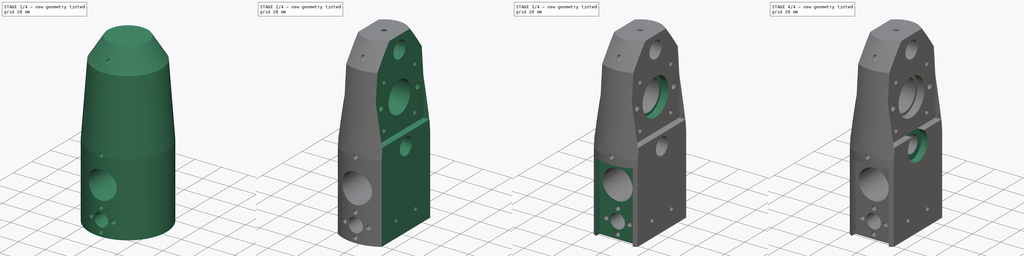
[diagram: build sequence overview — one tinted view per stage of 4, left to right]
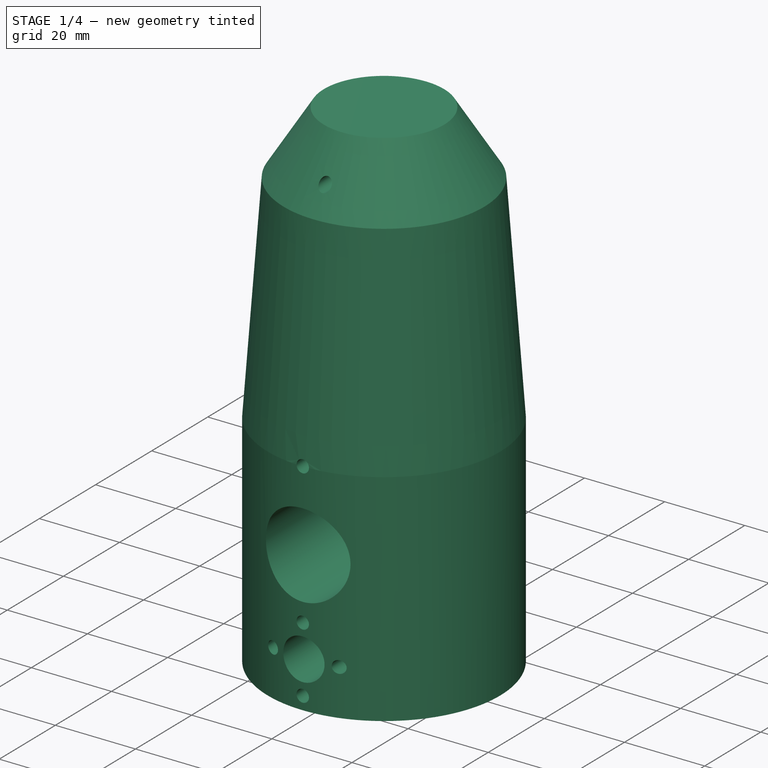
[diagram: stage 1 of 4 — iso view after this stage's code; geometry added in this stage tinted green]
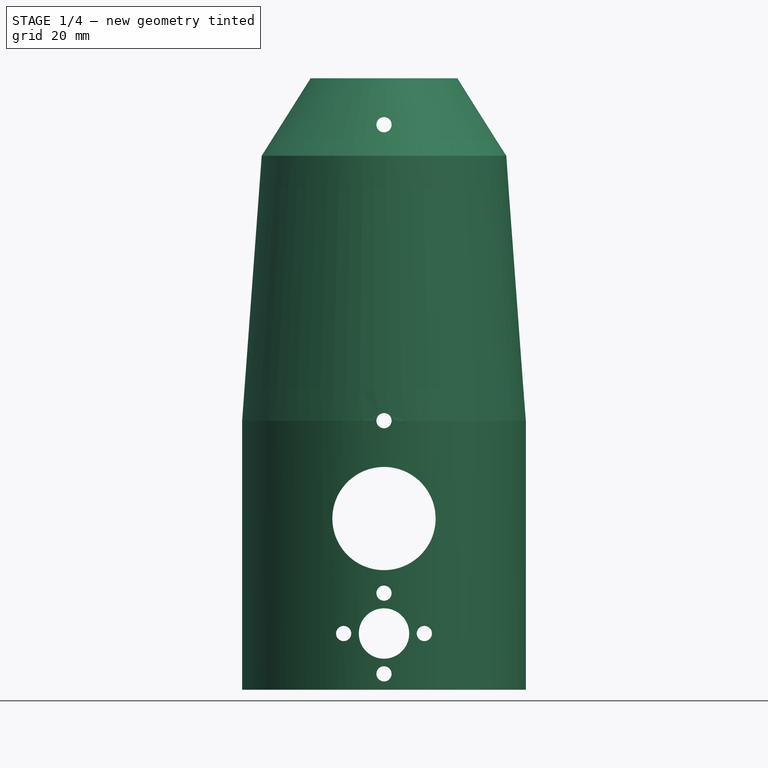
[diagram: stage 1 of 4 — front view after this stage's code; geometry added in this stage tinted green]
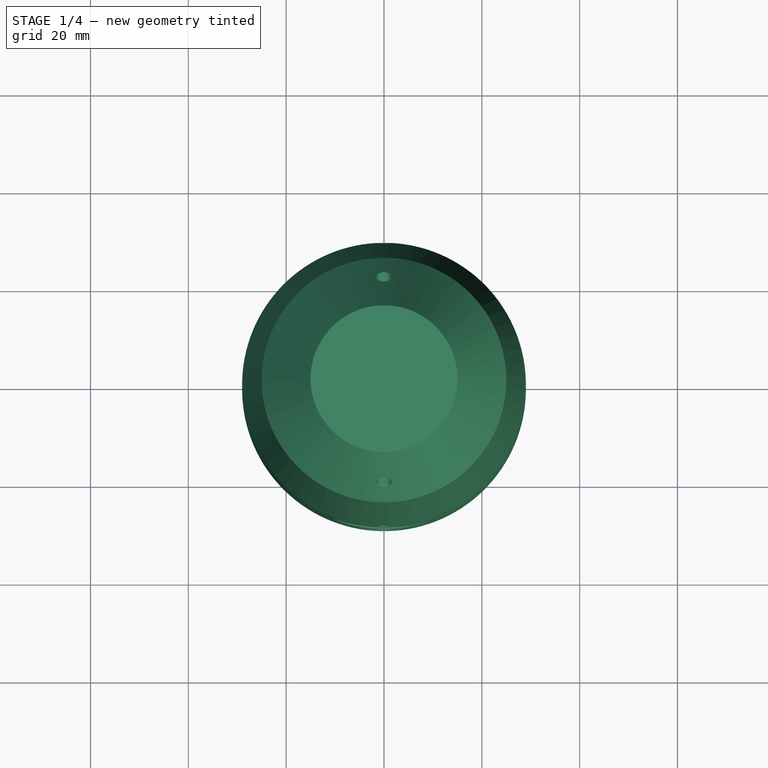
[diagram: stage 1 of 4 — top view after this stage's code; geometry added in this stage tinted green]
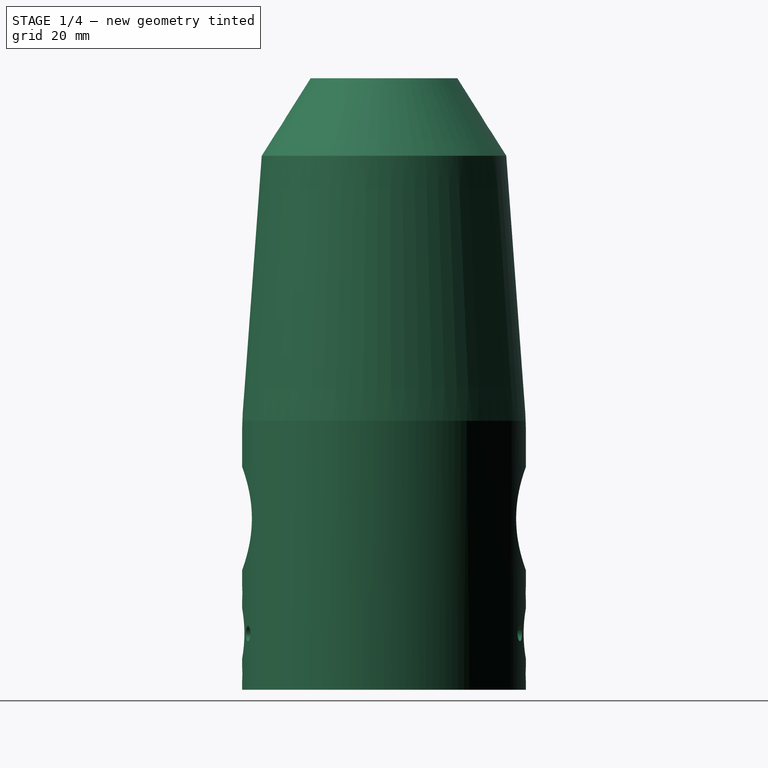
[diagram: stage 1 of 4 — right view after this stage's code; geometry added in this stage tinted green]
FCSTD DOCUMENT  (FreeCAD 0.19R)
Label: rod_holder_x
License: All rights reserved
LicenseURL: http://en.wikipedia.org/wiki/All_rights_reserved
objects: Sketcher::SketchObject×10, PartDesign::Pocket×9, PartDesign::Revolution×1, PartDesign::Body×1
note: 31 computed .brp shape members not serialized (recipe doc carries the construction recipe); baked Part::Feature solids carry a one-line shape summary decoded from their .brp

FEATURE [Sketcher::SketchObject] Sketch
  FullyConstrained = false
  MapMode = 5
  Placement = pos=(0,0,0) rot=(1,0,0;1.5708rad)
  Support = -> [XZ_Plane]
  sketch-geometry (6):
    g0: LineSegment StartX=0 StartY=-35 StartZ=0 EndX=-29 EndY=-35 EndZ=0
    g1: LineSegment StartX=-29 StartY=-35 StartZ=0 EndX=-29 EndY=20 EndZ=0
    g2: LineSegment StartX=-15 StartY=90 StartZ=0 EndX=0 EndY=90 EndZ=0
    g3: LineSegment StartX=0 StartY=90 StartZ=0 EndX=0 EndY=-35 EndZ=0
    g4: LineSegment StartX=-15 StartY=90 StartZ=0 EndX=-25 EndY=74.1526 EndZ=0
    g5: LineSegment StartX=-25 StartY=74.1526 StartZ=0 EndX=-29 EndY=20 EndZ=0
  constraints (17):
    c: PointOnObject(g0,g-2)
    c: Horizontal(g0)
    c: Vertical(g1)
    c: PointOnObject(g2,g-2)
    c: Horizontal(g2)
    c: Coincident(g3,g2)
    c: Coincident(g3,g0)
    c: DistanceY(g0,g-1) = 35
    c: Coincident(g1,g0)
    c: DistanceY(g-1,g2) = 90
    c: DistanceY(g0,g1) = 55
    c: DistanceX(g0,g0) = 29
    c: DistanceX(g2,g2) = 15
    c: Coincident(g4,g2)
    c: Coincident(g5,g4)
    c: Coincident(g5,g1)
    c: DistanceX(g4,g2) = 25
FEATURE [PartDesign::Revolution] Revolution
  Angle = 360
  Axis = (0,2e-16,1)
  Base = (0,0,0)
  Placement = pos=(0,0,0) rot=(1,0,0;1.5708rad)
  Profile = -> Sketch
  ReferenceAxis = -> Sketch [V_Axis]
FEATURE [Sketcher::SketchObject] Sketch001
  FullyConstrained = false
  MapMode = 5
  Placement = pos=(0,0,0) rot=(1,0,0;1.5708rad)
  Support = -> [XZ_Plane]
  sketch-geometry (13):
    g0: Circle CenterX=0 CenterY=0 CenterZ=0 NormalX=0 NormalY=0 NormalZ=1 AngleXU=0 Radius=10.55
    g1: Circle CenterX=0 CenterY=-23.5 CenterZ=0 NormalX=0 NormalY=0 NormalZ=1 AngleXU=0 Radius=5.15
    g2: LineSegment StartX=0 StartY=-31.75 StartZ=0 EndX=8.25 EndY=-23.5 EndZ=0
    g3: LineSegment StartX=8.25 StartY=-23.5 StartZ=0 EndX=-8.9e-15 EndY=-15.25 EndZ=0
    g4: LineSegment StartX=-8.9e-15 StartY=-15.25 StartZ=0 EndX=-8.25 EndY=-23.5 EndZ=0
    g5: LineSegment StartX=-8.25 StartY=-23.5 StartZ=0 EndX=0 EndY=-31.75 EndZ=0
    g6: Circle CenterX=0 CenterY=-23.5 CenterZ=0 NormalX=0 NormalY=0 NormalZ=1 AngleXU=0 Radius=8.25
    g7: Circle CenterX=-8.9e-15 CenterY=-15.25 CenterZ=0 NormalX=0 NormalY=0 NormalZ=1 AngleXU=0 Radius=1.55
    g8: Circle CenterX=8.25 CenterY=-23.5 CenterZ=0 NormalX=0 NormalY=0 NormalZ=1 AngleXU=0 Radius=1.55
    g9: Circle CenterX=0 CenterY=-31.75 CenterZ=0 NormalX=0 NormalY=0 NormalZ=1 AngleXU=0 Radius=1.55
    g10: Circle CenterX=-8.25 CenterY=-23.5 CenterZ=0 NormalX=0 NormalY=0 NormalZ=1 AngleXU=0 Radius=1.55
    g11: Circle CenterX=0 CenterY=20 CenterZ=0 NormalX=0 NormalY=0 NormalZ=1 AngleXU=0 Radius=1.55
    g12: Circle CenterX=0 CenterY=80.5 CenterZ=0 NormalX=0 NormalY=0 NormalZ=1 AngleXU=0 Radius=1.55
  constraints (31):
    c: PointOnObject(g0,g-1)
    c: Diameter(g0) = 21.1
    c: PointOnObject(g0,g-2)
    c: PointOnObject(g1,g-2)
    c: Diameter(g1) = 10.3
    c: DistanceY(g1,g0) = 23.5
    c: Coincident(g2,g3)
    c: Coincident(g3,g4)
    c: Coincident(g4,g5)
    c: Coincident(g5,g2)
    c: Equal(g2,g3)
    c: Equal(g2,g4)
    c: Equal(g2,g5)
    c: PointOnObject(g2,g6)
    c: PointOnObject(g3,g6)
    c: PointOnObject(g4,g6)
    c: PointOnObject(g5,g6)
    c: Coincident(g6,g1)
    c: PointOnObject(g5,g-2)
    c: DistanceY(g2,g1) = 8.25
    c: Coincident(g7,g3)
    c: Coincident(g8,g2)
    c: Coincident(g9,g2)
    c: Coincident(g10,g4)
    c: Equal(g10,g9)
    c: PointOnObject(g11,g-2)
    c: DistanceY(g0,g11) = 20
    c: PointOnObject(g12,g-2)
    c: Diameter(g12) = 3.1
    c: Diameter(g11) = 3.1
    c: DistanceY(g11,g12) = 60.5
FEATURE [PartDesign::Pocket] Pocket
  BaseFeature = -> Revolution
  Length = 100
  Length2 = 100
  Placement = pos=(0,0,0) rot=(1,0,0;1.5708rad)
  Profile = -> Sketch001
  Type = 4
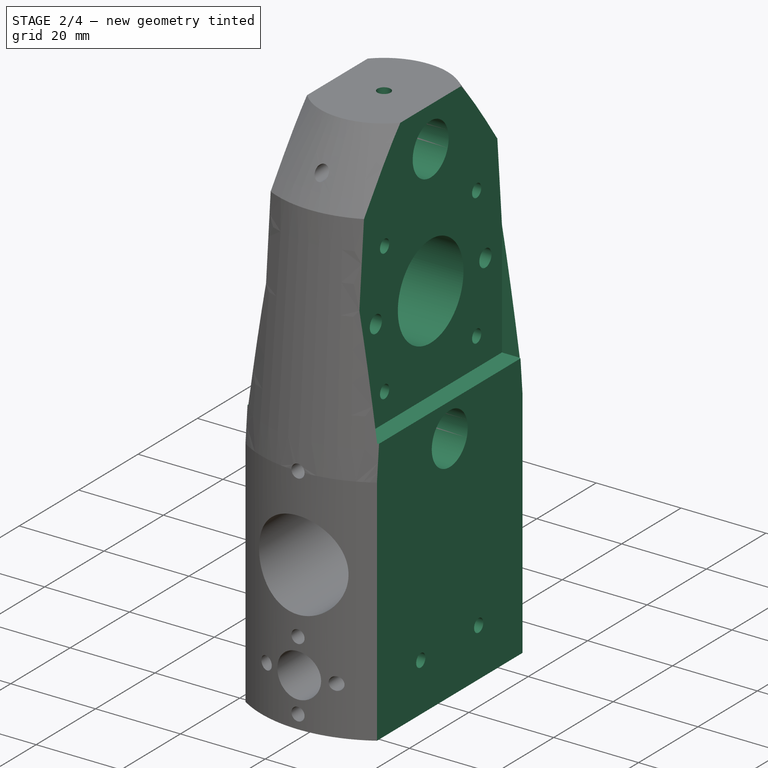
[diagram: stage 2 of 4 — iso view after this stage's code; geometry added in this stage tinted green]
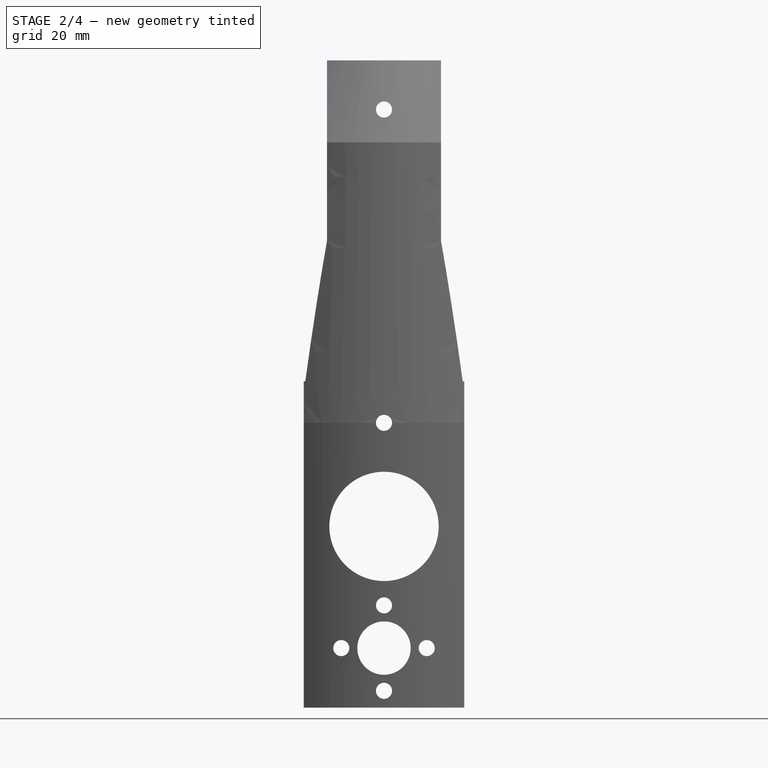
[diagram: stage 2 of 4 — front view after this stage's code; geometry added in this stage tinted green]
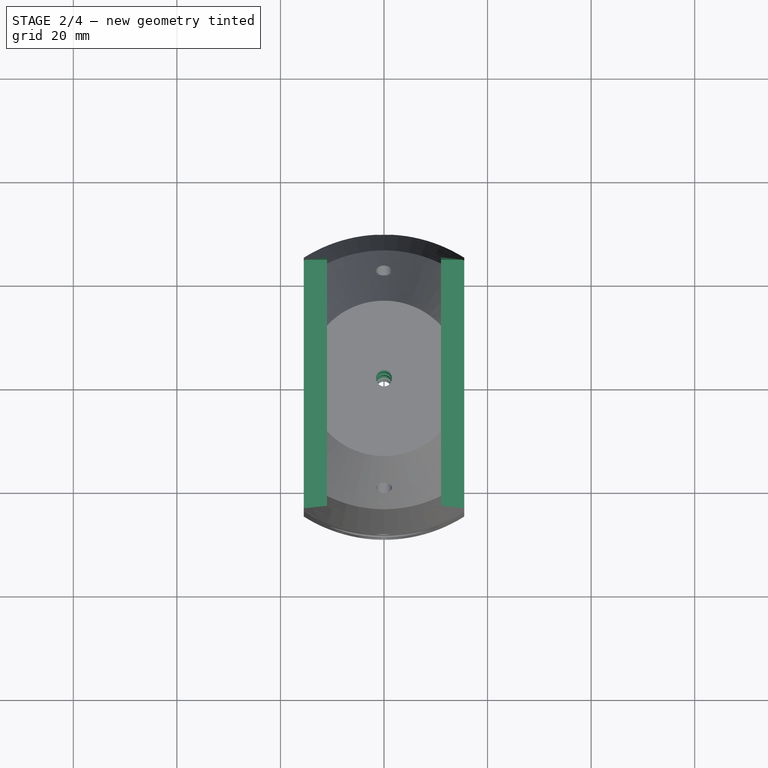
[diagram: stage 2 of 4 — top view after this stage's code; geometry added in this stage tinted green]
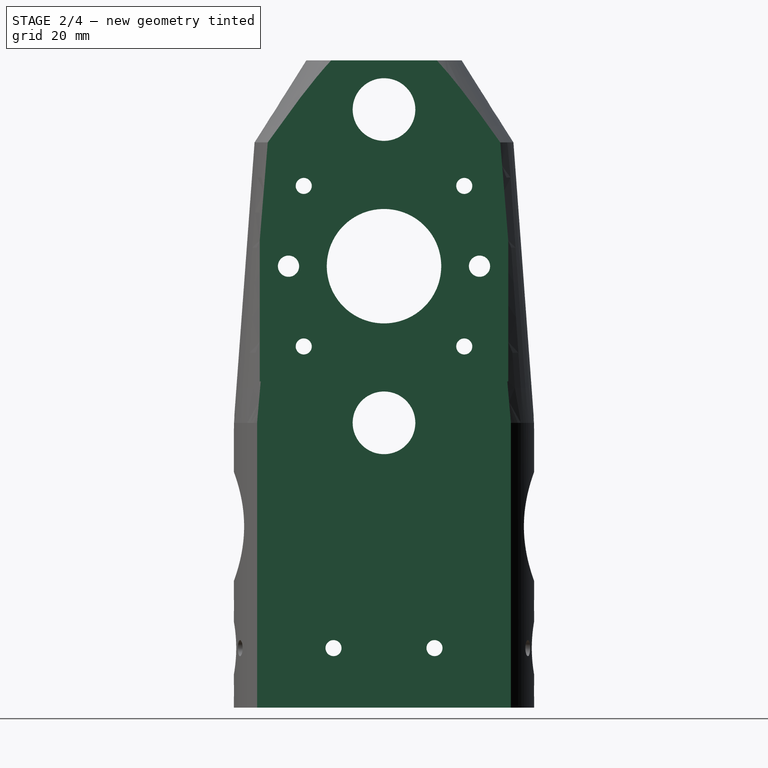
[diagram: stage 2 of 4 — right view after this stage's code; geometry added in this stage tinted green]
FEATURE [Sketcher::SketchObject] Sketch002
  FullyConstrained = false
  MapMode = 5
  Placement = pos=(0,-3.89e-14,-35) rot=(1,0,0;3.14159rad)
  Support = -> [Pocket]
  sketch-geometry (9):
    g0: Circle CenterX=0 CenterY=0 CenterZ=0 NormalX=0 NormalY=0 NormalZ=1 AngleXU=0 Radius=1.55
    g1: LineSegment StartX=-34.2658 StartY=34.1571 StartZ=0 EndX=-15.5 EndY=34.1571 EndZ=0
    g2: LineSegment StartX=-15.5 StartY=34.1571 StartZ=0 EndX=-15.5 EndY=-34.1571 EndZ=0
    g3: LineSegment StartX=-15.5 StartY=-34.1571 StartZ=0 EndX=-34.2658 EndY=-34.1571 EndZ=0
    g4: LineSegment StartX=-34.2658 StartY=-34.1571 StartZ=0 EndX=-34.2658 EndY=34.1571 EndZ=0
    g5: LineSegment StartX=15.5 StartY=34.1571 StartZ=0 EndX=34.2658 EndY=34.1571 EndZ=0
    g6: LineSegment StartX=34.2658 StartY=34.1571 StartZ=0 EndX=34.2658 EndY=-34.1571 EndZ=0
    g7: LineSegment StartX=34.2658 StartY=-34.1571 StartZ=0 EndX=15.5 EndY=-34.1571 EndZ=0
    g8: LineSegment StartX=15.5 StartY=-34.1571 StartZ=0 EndX=15.5 EndY=34.1571 EndZ=0
  constraints (20):
    c: Coincident(g0,g-1)
    c: Diameter(g0) = 3.1
    c: Coincident(g1,g2)
    c: Coincident(g2,g3)
    c: Coincident(g3,g4)
    c: Coincident(g4,g1)
    c: Horizontal(g1)
    c: Horizontal(g3)
    c: Vertical(g2)
    c: Coincident(g5,g6)
    c: Coincident(g6,g7)
    c: Coincident(g7,g8)
    c: Coincident(g8,g5)
    c: Horizontal(g7)
    c: Vertical(g8)
    c: Symmetric(g1,g5,g-2)
    c: Symmetric(g5,g6,g-1)
    c: Symmetric(g1,g3,g-1)
    c: DistanceX(g2,g7) = 31
    c: Symmetric(g3,g6,g-2)
FEATURE [PartDesign::Pocket] Pocket001
  BaseFeature = -> Pocket
  Length = 5
  Length2 = 100
  Placement = pos=(0,0,0) rot=(1,0,0;1.5708rad)
  Profile = -> Sketch002
  Type = 1
FEATURE [Sketcher::SketchObject] Sketch003
  FullyConstrained = false
  MapMode = 5
  Placement = pos=(-15.5,0,0) rot=(0.707107,0,-0.707107;3.14159rad)
  Support = -> [Pocket001]
  sketch-geometry (17):
    g0: Circle CenterX=-20 CenterY=-8.2e-15 CenterZ=0 NormalX=0 NormalY=0 NormalZ=1 AngleXU=0 Radius=6.05
    g1: Circle CenterX=-80.5 CenterY=-8.2e-15 CenterZ=0 NormalX=0 NormalY=0 NormalZ=1 AngleXU=0 Radius=6.05
    g2: Circle CenterX=-50.25 CenterY=-2.46e-14 CenterZ=0 NormalX=0 NormalY=0 NormalZ=1 AngleXU=0 Radius=11.05
    g3: LineSegment StartX=-34.75 StartY=-15.5 StartZ=0 EndX=-34.75 EndY=15.5 EndZ=0
    g4: LineSegment StartX=-34.75 StartY=15.5 StartZ=0 EndX=-65.75 EndY=15.5 EndZ=0
    g5: LineSegment StartX=-65.75 StartY=15.5 StartZ=0 EndX=-65.75 EndY=-15.5 EndZ=0
    g6: LineSegment StartX=-65.75 StartY=-15.5 StartZ=0 EndX=-34.75 EndY=-15.5 EndZ=0
    g7: Circle CenterX=-50.25 CenterY=-2.46e-14 CenterZ=0 NormalX=0 NormalY=0 NormalZ=1 AngleXU=0 Radius=21.9203
    g8: Circle CenterX=-34.75 CenterY=15.5 CenterZ=0 NormalX=0 NormalY=0 NormalZ=1 AngleXU=0 Radius=3.07e-14
    g9: Circle CenterX=23.5 CenterY=9.75 CenterZ=0 NormalX=0 NormalY=0 NormalZ=1 AngleXU=0 Radius=1.55
    g10: Circle CenterX=23.5 CenterY=-9.75 CenterZ=0 NormalX=0 NormalY=0 NormalZ=1 AngleXU=0 Radius=1.55
    g11: Circle CenterX=-34.75 CenterY=15.5 CenterZ=0 NormalX=0 NormalY=0 NormalZ=1 AngleXU=0 Radius=1.55
    g12: Circle CenterX=-34.75 CenterY=-15.5 CenterZ=0 NormalX=0 NormalY=0 NormalZ=1 AngleXU=0 Radius=1.55
    g13: Circle CenterX=-65.75 CenterY=-15.5 CenterZ=0 NormalX=0 NormalY=0 NormalZ=1 AngleXU=0 Radius=1.55
    g14: Circle CenterX=-65.75 CenterY=15.5 CenterZ=0 NormalX=0 NormalY=0 NormalZ=1 AngleXU=0 Radius=1.55
    g15: Circle CenterX=-50.25 CenterY=18.441 CenterZ=0 NormalX=0 NormalY=0 NormalZ=1 AngleXU=0 Radius=2.05
    g16: Circle CenterX=-50.25 CenterY=-18.441 CenterZ=0 NormalX=0 NormalY=0 NormalZ=1 AngleXU=0 Radius=2.05
  constraints (39):
    c: PointOnObject(g0,g-1)
    c: PointOnObject(g1,g-1)
    c: Diameter(g0) = 12.1
    c: Equal(g0,g1)
    c: DistanceX(g1,g0) = 60.5
    c: Diameter(g2) = 22.1
    c: Symmetric(g1,g0,g2)
    c: Coincident(g3,g4)
    c: Coincident(g4,g5)
    c: Coincident(g5,g6)
    c: Coincident(g6,g3)
    c: Equal(g3,g4)
    c: Equal(g3,g5)
    c: Equal(g3,g6)
    c: PointOnObject(g3,g7)
    c: PointOnObject(g4,g7)
    c: PointOnObject(g5,g7)
    c: Coincident(g7,g2)
    c: Symmetric(g3,g3,g-1)
    c: Distance(g6) = 31
    c: Coincident(g8,g3)
    c: Tangent(g8,g7)
    c: Symmetric(g9,g10,g-1)
    c: Diameter(g9) = 3.1
    c: Equal(g9,g10)
    c: DistanceY(g10,g9) = 19.5
    c: DistanceX(g-1,g10) = 23.5
    c: Coincident(g11,g8)
    c: Coincident(g12,g3)
    c: Coincident(g13,g5)
    c: Coincident(g14,g4)
    c: Diameter(g14) = 3.1
    c: Equal(g14,g11)
    c: Equal(g14,g12)
    c: Diameter(g15) = 4.1
    c: Equal(g15,g16)
    c: Symmetric(g15,g16,g-1)
    c: DistanceX(g15,g2) = 0
    c: DistanceX(g0,g-1) = 20
FEATURE [PartDesign::Pocket] Pocket002
  BaseFeature = -> Pocket001
  Length = 5
  Length2 = 100
  Placement = pos=(0,0,0) rot=(1,0,0;1.5708rad)
  Profile = -> Sketch003
  Type = 1
FEATURE [Sketcher::SketchObject] Sketch004
  FullyConstrained = true
  MapMode = 5
  Placement = pos=(0,1.799e-13,90) rot=(0,0,1;3.14159rad)
  Support = -> [Pocket002]
  sketch-geometry (8):
    g0: LineSegment StartX=-31 StartY=24 StartZ=0 EndX=-11 EndY=24 EndZ=0
    g1: LineSegment StartX=-11 StartY=24 StartZ=0 EndX=-11 EndY=-24 EndZ=0
    g2: LineSegment StartX=-11 StartY=-24 StartZ=0 EndX=-31 EndY=-24 EndZ=0
    g3: LineSegment StartX=-31 StartY=-24 StartZ=0 EndX=-31 EndY=24 EndZ=0
    g4: LineSegment StartX=11 StartY=24 StartZ=0 EndX=31 EndY=24 EndZ=0
    g5: LineSegment StartX=31 StartY=24 StartZ=0 EndX=31 EndY=-24 EndZ=0
    g6: LineSegment StartX=31 StartY=-24 StartZ=0 EndX=11 EndY=-24 EndZ=0
    g7: LineSegment StartX=11 StartY=-24 StartZ=0 EndX=11 EndY=24 EndZ=0
  constraints (21):
    c: Coincident(g0,g1)
    c: Coincident(g1,g2)
    c: Coincident(g2,g3)
    c: Coincident(g3,g0)
    c: Horizontal(g0)
    c: Horizontal(g2)
    c: Vertical(g1)
    c: Coincident(g4,g5)
    c: Coincident(g5,g6)
    c: Coincident(g6,g7)
    c: Coincident(g7,g4)
    c: Horizontal(g4)
    c: Horizontal(g6)
    c: Vertical(g7)
    c: Symmetric(g4,g5,g-1)
    c: Symmetric(g4,g0,g-2)
    c: Distance(g4) = 20
    c: Distance(g0) = 20
    c: Distance(g3) = 48
    c: Symmetric(g0,g2,g-1)
    c: Distance(g6,g1) = 22
FEATURE [PartDesign::Pocket] Pocket003
  BaseFeature = -> Pocket002
  Length = 62
  Length2 = 100
  Placement = pos=(0,0,0) rot=(1,0,0;1.5708rad)
  Profile = -> Sketch004
  Type = 0
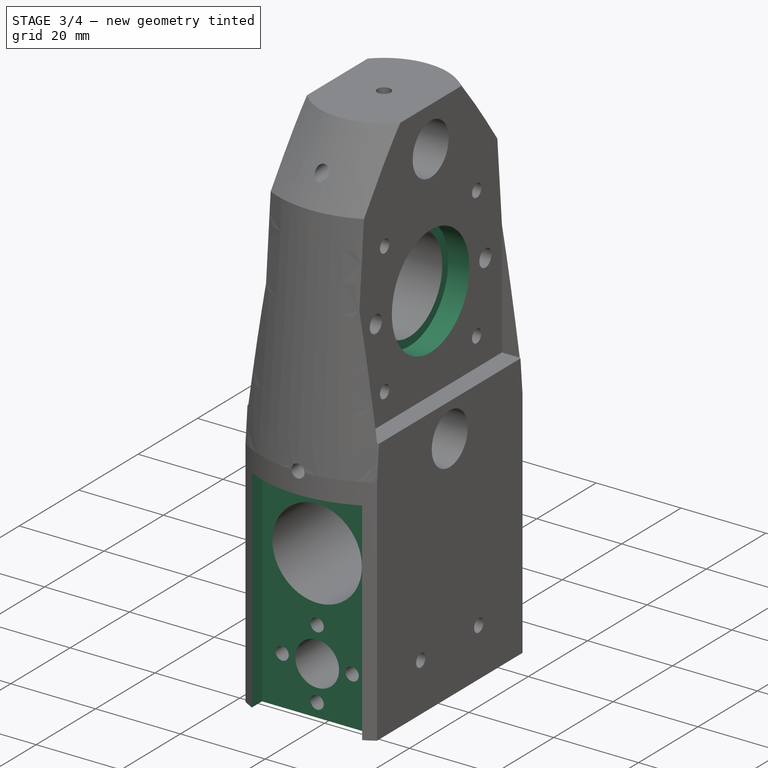
[diagram: stage 3 of 4 — iso view after this stage's code; geometry added in this stage tinted green]
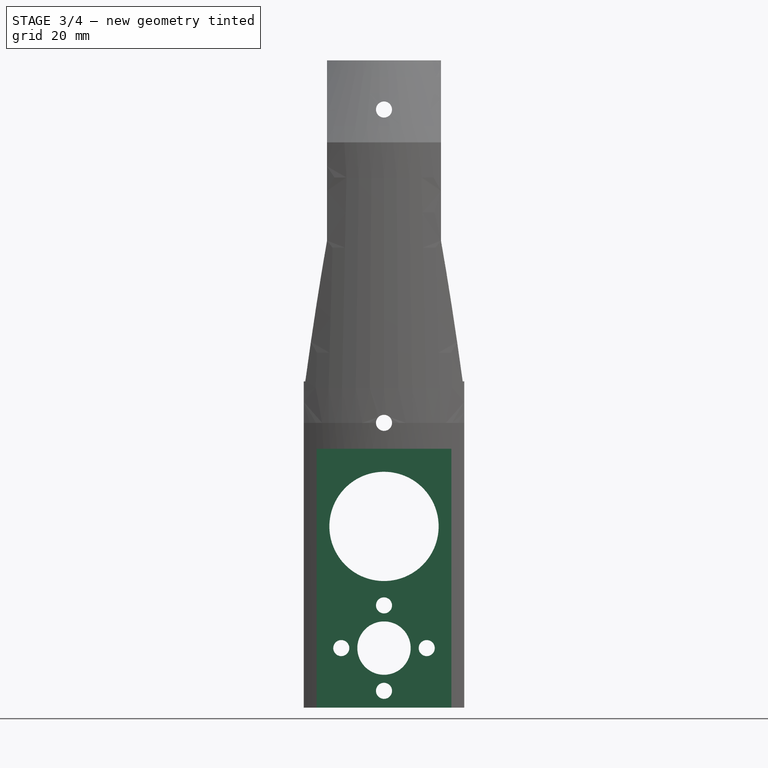
[diagram: stage 3 of 4 — front view after this stage's code; geometry added in this stage tinted green]
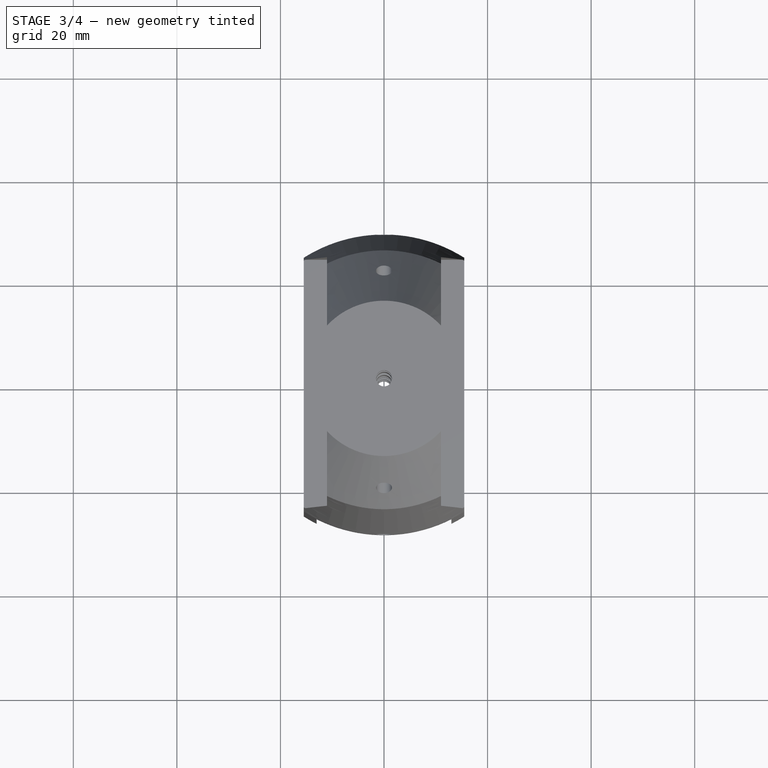
[diagram: stage 3 of 4 — top view after this stage's code; geometry added in this stage tinted green]
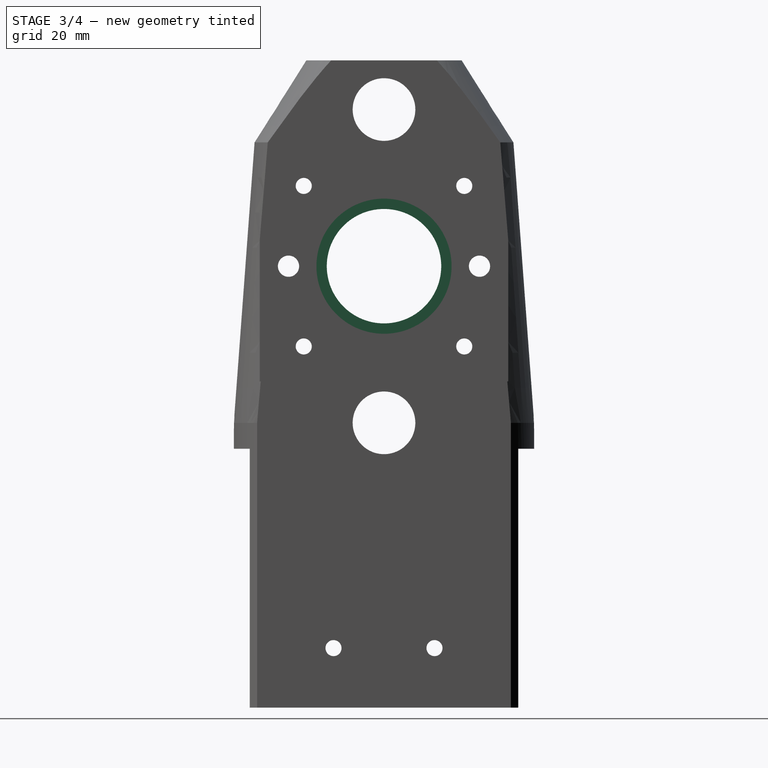
[diagram: stage 3 of 4 — right view after this stage's code; geometry added in this stage tinted green]
FEATURE [Sketcher::SketchObject] Sketch005
  FullyConstrained = false
  MapMode = 5
  Placement = pos=(0,-8.55e-14,-35) rot=(1,0,0;3.14159rad)
  Support = -> [Pocket003]
  sketch-geometry (8):
    g0: LineSegment StartX=-13 StartY=36.1481 StartZ=0 EndX=13 EndY=36.1481 EndZ=0
    g1: LineSegment StartX=13 StartY=36.1481 StartZ=0 EndX=13 EndY=22.5 EndZ=0
    g2: LineSegment StartX=13 StartY=22.5 StartZ=0 EndX=-13 EndY=22.5 EndZ=0
    g3: LineSegment StartX=-13 StartY=22.5 StartZ=0 EndX=-13 EndY=36.1481 EndZ=0
    g4: LineSegment StartX=-13 StartY=-22.5 StartZ=0 EndX=13 EndY=-22.5 EndZ=0
    g5: LineSegment StartX=13 StartY=-22.5 StartZ=0 EndX=13 EndY=-36.1481 EndZ=0
    g6: LineSegment StartX=13 StartY=-36.1481 StartZ=0 EndX=-13 EndY=-36.1481 EndZ=0
    g7: LineSegment StartX=-13 StartY=-36.1481 StartZ=0 EndX=-13 EndY=-22.5 EndZ=0
  constraints (20):
    c: Coincident(g0,g1)
    c: Coincident(g1,g2)
    c: Coincident(g2,g3)
    c: Coincident(g3,g0)
    c: Horizontal(g0)
    c: Horizontal(g2)
    c: Vertical(g1)
    c: Vertical(g3)
    c: Coincident(g4,g5)
    c: Coincident(g5,g6)
    c: Coincident(g6,g7)
    c: Coincident(g7,g4)
    c: Horizontal(g4)
    c: Vertical(g5)
    c: Vertical(g7)
    c: Symmetric(g1,g4,g-1)
    c: Symmetric(g5,g6,g-2)
    c: Symmetric(g6,g0,g-1)
    c: Distance(g6) = 26
    c: Distance(g4,g2) = 45
FEATURE [PartDesign::Pocket] Pocket004
  BaseFeature = -> Pocket003
  Length = 50
  Length2 = 100
  Placement = pos=(0,0,0) rot=(1,0,0;1.5708rad)
  Profile = -> Sketch005
  Type = 0
FEATURE [Sketcher::SketchObject] Sketch006
  FullyConstrained = true
  MapMode = 5
  Placement = pos=(11,0,0) rot=(0.707107,0,0.707107;3.14159rad)
  Support = -> [Pocket004]
  sketch-geometry (1):
    g0: Circle CenterX=50.25 CenterY=0 CenterZ=0 NormalX=0 NormalY=0 NormalZ=1 AngleXU=0 Radius=13.05
  constraints (3):
    c: PointOnObject(g0,g-1)
    c: Diameter(g0) = 26.1
    c: DistanceX(g-1,g0) = 50.25
FEATURE [PartDesign::Pocket] Pocket005
  BaseFeature = -> Pocket004
  Length = 5
  Length2 = 100
  Placement = pos=(0,0,0) rot=(1,0,0;1.5708rad)
  Profile = -> Sketch006
  Type = 0
FEATURE [Sketcher::SketchObject] Sketch007
  FullyConstrained = true
  MapMode = 5
  Placement = pos=(-11,0,0) rot=(0.707107,0,-0.707107;3.14159rad)
  Support = -> [Pocket005]
  sketch-geometry (1):
    g0: Circle CenterX=-50.25 CenterY=0 CenterZ=0 NormalX=0 NormalY=0 NormalZ=1 AngleXU=0 Radius=13.05
  constraints (3):
    c: PointOnObject(g0,g-1)
    c: Diameter(g0) = 26.1
    c: DistanceX(g0,g-1) = 50.25
FEATURE [PartDesign::Pocket] Pocket006
  BaseFeature = -> Pocket005
  Length = 5
  Length2 = 100
  Placement = pos=(0,0,0) rot=(1,0,0;1.5708rad)
  Profile = -> Sketch007
  Type = 0
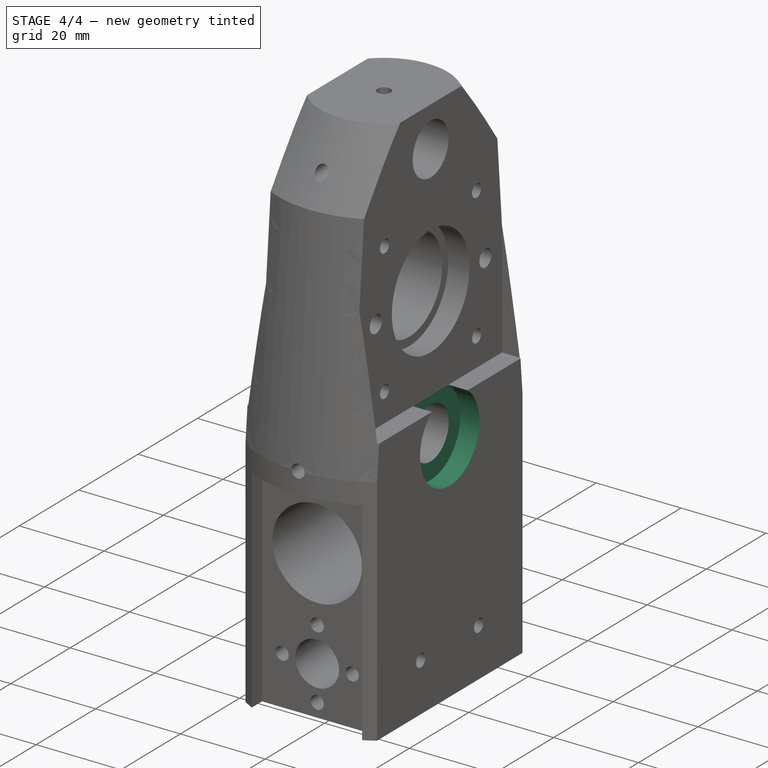
[diagram: stage 4 of 4 — iso view after this stage's code; geometry added in this stage tinted green]
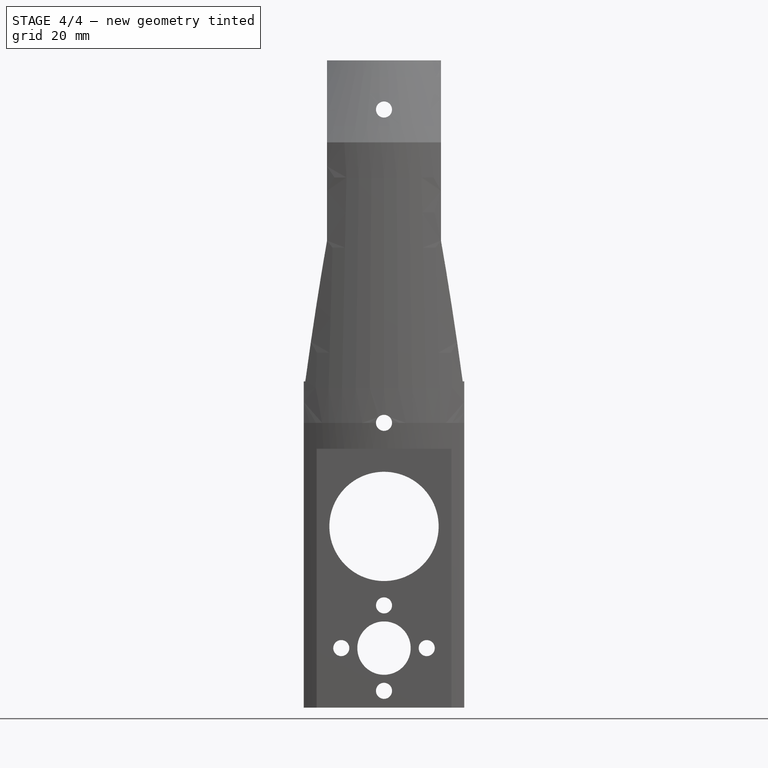
[diagram: stage 4 of 4 — front view after this stage's code; geometry added in this stage tinted green]
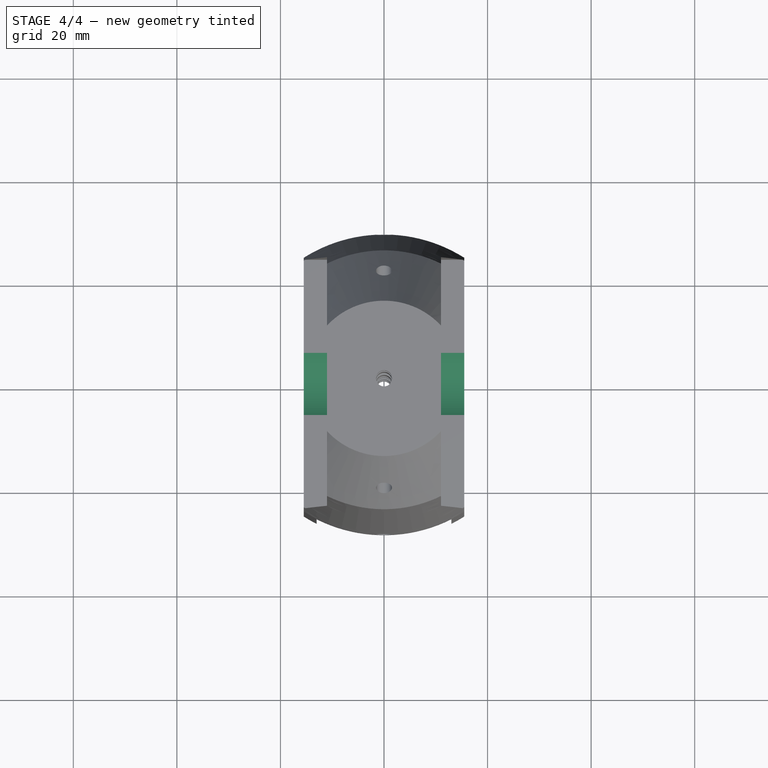
[diagram: stage 4 of 4 — top view after this stage's code; geometry added in this stage tinted green]
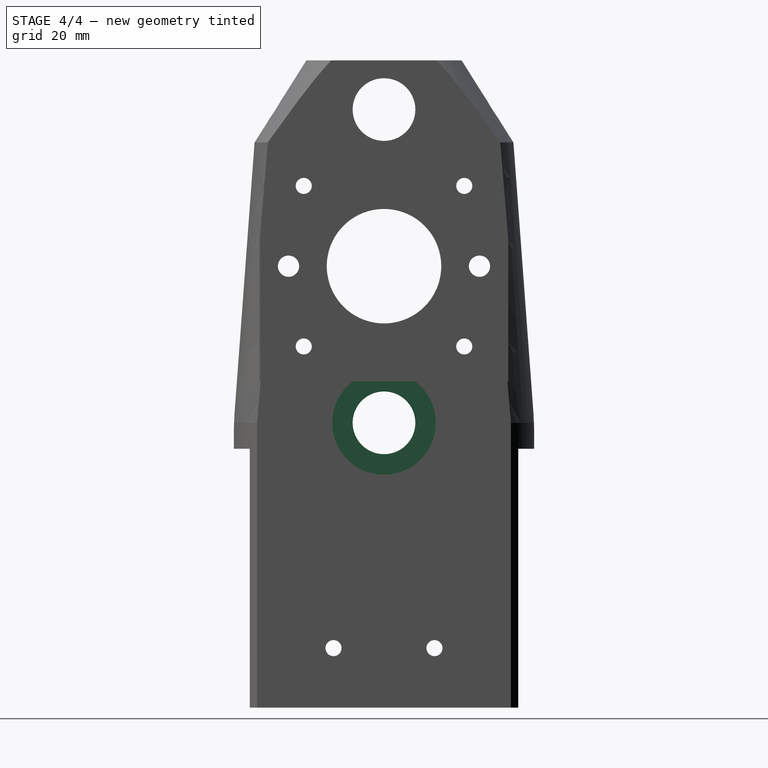
[diagram: stage 4 of 4 — right view after this stage's code; geometry added in this stage tinted green]
FEATURE [Sketcher::SketchObject] Sketch008
  FullyConstrained = true
  MapMode = 5
  Placement = pos=(-15.5,0,0) rot=(0.707107,0,-0.707107;3.14159rad)
  Support = -> [Pocket006]
  sketch-geometry (1):
    g0: Circle CenterX=-20 CenterY=0 CenterZ=0 NormalX=0 NormalY=0 NormalZ=1 AngleXU=0 Radius=10
  constraints (3):
    c: PointOnObject(g0,g-1)
    c: DistanceX(g0,g-1) = 20
    c: Diameter(g0) = 20
FEATURE [PartDesign::Pocket] Pocket007
  BaseFeature = -> Pocket006
  Length = 4.5
  Length2 = 100
  Placement = pos=(0,0,0) rot=(1,0,0;1.5708rad)
  Profile = -> Sketch008
  Type = 0
FEATURE [Sketcher::SketchObject] Sketch009
  FullyConstrained = true
  MapMode = 5
  Placement = pos=(15.5,0,0) rot=(0.707107,0,0.707107;3.14159rad)
  Support = -> [Pocket007]
  sketch-geometry (1):
    g0: Circle CenterX=20 CenterY=0 CenterZ=0 NormalX=0 NormalY=0 NormalZ=1 AngleXU=0 Radius=10
  constraints (3):
    c: PointOnObject(g0,g-1)
    c: DistanceX(g-1,g0) = 20
    c: Diameter(g0) = 20
FEATURE [PartDesign::Pocket] Pocket008
  BaseFeature = -> Pocket007
  Length = 4.5
  Length2 = 100
  Placement = pos=(0,0,0) rot=(1,0,0;1.5708rad)
  Profile = -> Sketch009
  Type = 0
FEATURE [PartDesign::Body] Body
  Group = -> [Sketch,Revolution,Sketch001,Pocket,Sketch002,Pocket001,Sketch003,Pocket002,Sketch004,Pocket003,Sketch005,Pocket004,Sketch006,Pocket005,Sketch007,Pocket006,Sketch008,Pocket007,Sketch009,Pocket008]
  Origin = -> Origin
  Tip = -> Pocket008
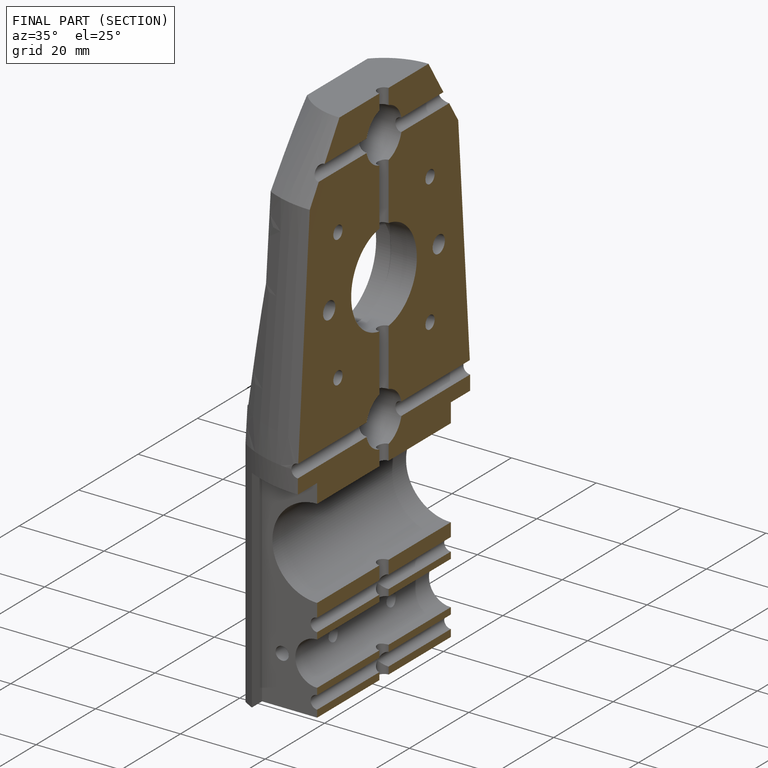
[diagram: finished part — half-section view (interior)]
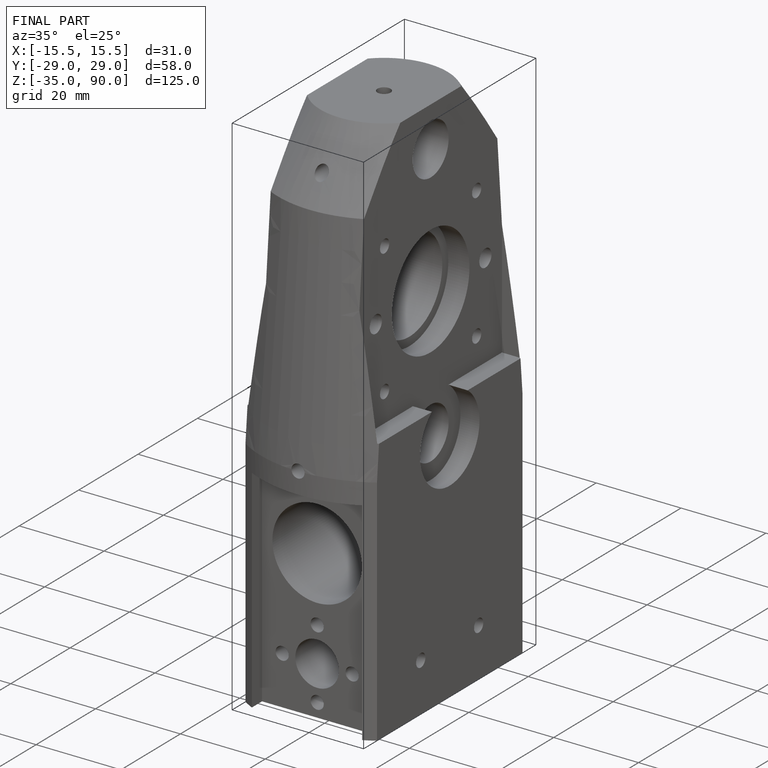
[diagram: finished part — iso view with bounding-box wireframe]
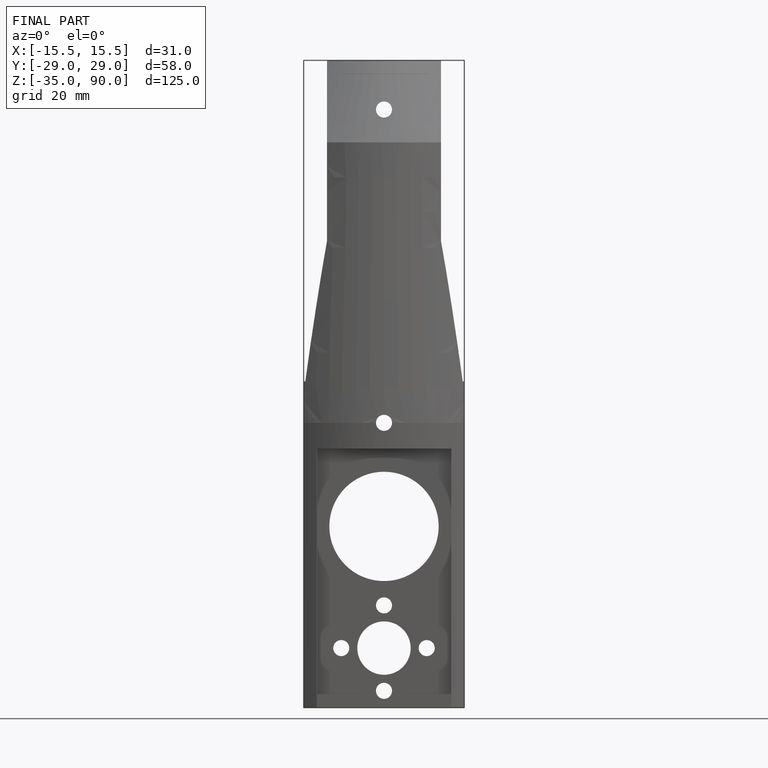
[diagram: finished part — front view with bounding-box wireframe]
